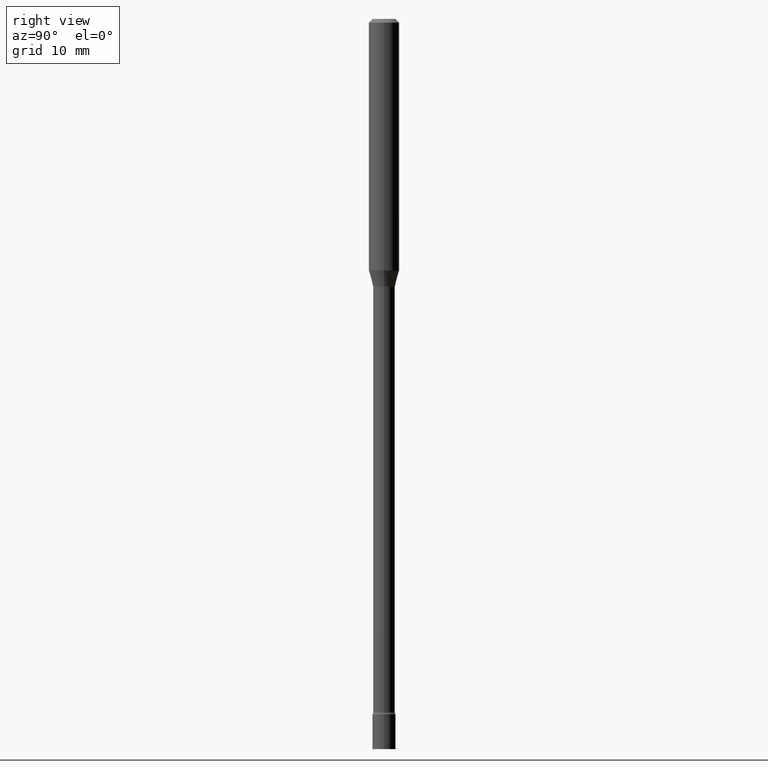
[diagram: clean part render]
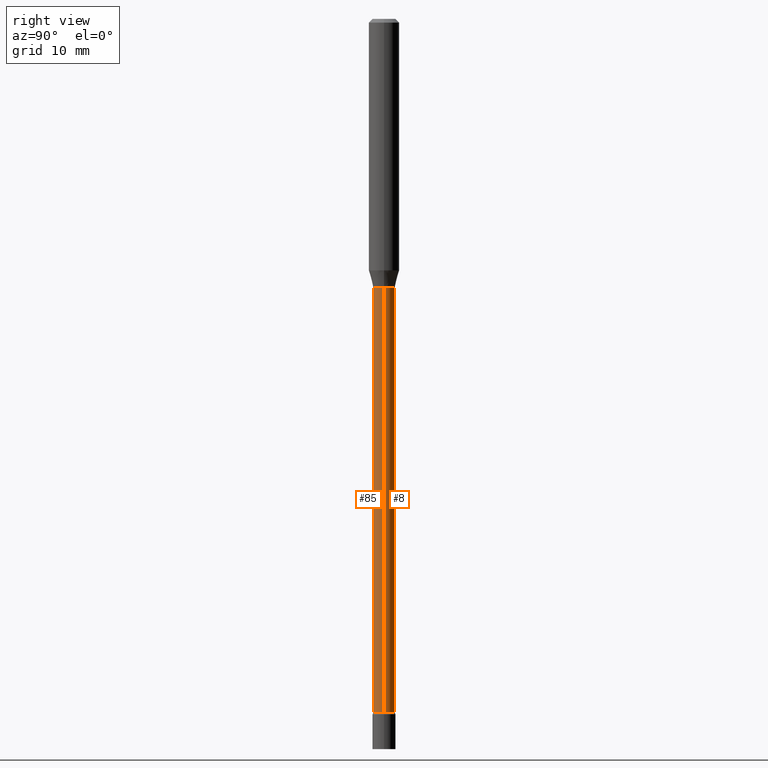
[diagram: same view with one multi-face feature highlighted, each face labeled with its STEP entity id]
A machine part, right view. The highlighted faces form ONE feature: a constant-radius fillet chain: 2 tangent blend faces with common blend radius 1.1341 mm. The faces share edges in the B-rep.
Their STEP definitions:
[1] entity #85 (Cylinder):
#15 = CARTESIAN_POINT ( 'NONE',  ( 2.694844967945245742E-29, -3.847524406305537825E-15, -1.101974787463811056 ) ) ;
#18 = CYLINDRICAL_SURFACE ( 'NONE', #336, 0.04465000000000009933 ) ;
#26 = CARTESIAN_POINT ( 'NONE',  ( 6.965192939722619373E-29, -9.944449550522084107E-15, -2.848203551853162985 ) ) ;
#47 = DIRECTION ( 'NONE',  ( -2.445468806185136877E-29, 3.491481338843145188E-15, 1.000000000000000000 ) ) ;
#48 = VERTEX_POINT ( 'NONE', #462 ) ;
#60 = VECTOR ( 'NONE', #514, 39.37007874015748143 ) ;
#62 = LINE ( 'NONE', #131, #150 ) ;
#69 = CIRCLE ( 'NONE', #288, 0.04465000000000018954 ) ;
#85 = ADVANCED_FACE ( 'NONE', ( #127 ), #18, .T. ) ;
#88 = DIRECTION ( 'NONE',  ( 1.000000000000000000, -6.982962677686268288E-15, 0.000000000000000000 ) ) ;
#117 = EDGE_CURVE ( 'NONE', #216, #48, #440, .T. ) ;
#127 = FACE_OUTER_BOUND ( 'NONE', #283, .T. ) ;
#129 = ORIENTED_EDGE ( 'NONE', *, *, #189, .T. ) ;
#131 = CARTESIAN_POINT ( 'NONE',  ( 0.04465000000000009933, -3.117892835586925182E-16, 2.177212930392890079E-30 ) ) ;
#143 = CARTESIAN_POINT ( 'NONE',  ( -0.04465000000000000219, -6.578729646896923703E-15, -1.101974787463811056 ) ) ;
#150 = VECTOR ( 'NONE', #47, 39.37007874015748143 ) ;
#160 = VERTEX_POINT ( 'NONE', #334 ) ;
#186 = CARTESIAN_POINT ( 'NONE',  ( -0.04465000000000009933, 3.172573315168854388E-16, -2.196304517798820251E-30 ) ) ;
#189 = EDGE_CURVE ( 'NONE', #160, #340, #69, .T. ) ;
#203 = EDGE_CURVE ( 'NONE', #160, #216, #307, .T. ) ;
#216 = VERTEX_POINT ( 'NONE', #143 ) ;
#283 = EDGE_LOOP ( 'NONE', ( #368, #129, #363, #461 ) ) ;
#288 = AXIS2_PLACEMENT_3D ( 'NONE', #26, #428, #429 ) ;
#291 = DIRECTION ( 'NONE',  ( 1.000000000000000000, -6.982962677686266711E-15, 4.876176775795935793E-29 ) ) ;
#301 = DIRECTION ( 'NONE',  ( -2.445468806185136597E-29, 3.491481338843145583E-15, 1.000000000000000000 ) ) ;
#307 = LINE ( 'NONE', #186, #60 ) ;
#334 = CARTESIAN_POINT ( 'NONE',  ( -0.04465000000000018954, -9.632423302297009755E-15, -2.848203551853162985 ) ) ;
#336 = AXIS2_PLACEMENT_3D ( 'NONE', #370, #365, #291 ) ;
#340 = VERTEX_POINT ( 'NONE', #437 ) ;
#363 = ORIENTED_EDGE ( 'NONE', *, *, #436, .T. ) ;
#365 = DIRECTION ( 'NONE',  ( -2.445468806185136597E-29, 3.491481338843145583E-15, 1.000000000000000000 ) ) ;
#368 = ORIENTED_EDGE ( 'NONE', *, *, #203, .F. ) ;
#370 = CARTESIAN_POINT ( 'NONE',  ( 0.000000000000000000, 0.000000000000000000, 0.000000000000000000 ) ) ;
#428 = DIRECTION ( 'NONE',  ( -2.445468806185136597E-29, 3.491481338843145583E-15, 1.000000000000000000 ) ) ;
#429 = DIRECTION ( 'NONE',  ( 1.000000000000000000, -6.982962677686249356E-15, 0.000000000000000000 ) ) ;
#436 = EDGE_CURVE ( 'NONE', #340, #48, #62, .T. ) ;
#437 = CARTESIAN_POINT ( 'NONE',  ( 0.04465000000000018954, -1.025623883408077648E-14, -2.848203551853162985 ) ) ;
#440 = CIRCLE ( 'NONE', #485, 0.04465000000000000219 ) ;
#461 = ORIENTED_EDGE ( 'NONE', *, *, #117, .F. ) ;
#462 = CARTESIAN_POINT ( 'NONE',  ( 0.04465000000000000219, -4.159313689864229407E-15, -1.101974787463811056 ) ) ;
#485 = AXIS2_PLACEMENT_3D ( 'NONE', #15, #301, #88 ) ;
#514 = DIRECTION ( 'NONE',  ( -2.445468806185136877E-29, 3.491481338843145188E-15, 1.000000000000000000 ) ) ;
[2] entity #8 (Cylinder):
#7 = ORIENTED_EDGE ( 'NONE', *, *, #436, .F. ) ;
#8 = ADVANCED_FACE ( 'NONE', ( #46 ), #252, .T. ) ;
#35 = DIRECTION ( 'NONE',  ( 1.000000000000000000, -6.982962677686268288E-15, 0.000000000000000000 ) ) ;
#46 = FACE_OUTER_BOUND ( 'NONE', #97, .T. ) ;
#47 = DIRECTION ( 'NONE',  ( -2.445468806185136877E-29, 3.491481338843145188E-15, 1.000000000000000000 ) ) ;
#48 = VERTEX_POINT ( 'NONE', #462 ) ;
#60 = VECTOR ( 'NONE', #514, 39.37007874015748143 ) ;
#62 = LINE ( 'NONE', #131, #150 ) ;
#66 = DIRECTION ( 'NONE',  ( 1.000000000000000000, -6.982962677686249356E-15, 0.000000000000000000 ) ) ;
#95 = CARTESIAN_POINT ( 'NONE',  ( 6.965192939722619373E-29, -9.944449550522084107E-15, -2.848203551853162985 ) ) ;
#97 = EDGE_LOOP ( 'NONE', ( #333, #253, #483, #7 ) ) ;
#131 = CARTESIAN_POINT ( 'NONE',  ( 0.04465000000000009933, -3.117892835586925182E-16, 2.177212930392890079E-30 ) ) ;
#143 = CARTESIAN_POINT ( 'NONE',  ( -0.04465000000000000219, -6.578729646896923703E-15, -1.101974787463811056 ) ) ;
#146 = DIRECTION ( 'NONE',  ( -2.445468806185136597E-29, 3.491481338843145583E-15, 1.000000000000000000 ) ) ;
#150 = VECTOR ( 'NONE', #47, 39.37007874015748143 ) ;
#160 = VERTEX_POINT ( 'NONE', #334 ) ;
#168 = AXIS2_PLACEMENT_3D ( 'NONE', #95, #269, #66 ) ;
#186 = CARTESIAN_POINT ( 'NONE',  ( -0.04465000000000009933, 3.172573315168854388E-16, -2.196304517798820251E-30 ) ) ;
#203 = EDGE_CURVE ( 'NONE', #160, #216, #307, .T. ) ;
#204 = DIRECTION ( 'NONE',  ( 1.000000000000000000, -6.982962677686266711E-15, 4.876176775795935793E-29 ) ) ;
#216 = VERTEX_POINT ( 'NONE', #143 ) ;
#245 = CIRCLE ( 'NONE', #168, 0.04465000000000018954 ) ;
#252 = CYLINDRICAL_SURFACE ( 'NONE', #297, 0.04465000000000009933 ) ;
#253 = ORIENTED_EDGE ( 'NONE', *, *, #203, .T. ) ;
#263 = DIRECTION ( 'NONE',  ( -2.445468806185136597E-29, 3.491481338843145583E-15, 1.000000000000000000 ) ) ;
#269 = DIRECTION ( 'NONE',  ( -2.445468806185136597E-29, 3.491481338843145583E-15, 1.000000000000000000 ) ) ;
#297 = AXIS2_PLACEMENT_3D ( 'NONE', #458, #263, #204 ) ;
#300 = EDGE_CURVE ( 'NONE', #340, #160, #245, .T. ) ;
#307 = LINE ( 'NONE', #186, #60 ) ;
#328 = CARTESIAN_POINT ( 'NONE',  ( 2.694844967945245742E-29, -3.847524406305537825E-15, -1.101974787463811056 ) ) ;
#333 = ORIENTED_EDGE ( 'NONE', *, *, #300, .T. ) ;
#334 = CARTESIAN_POINT ( 'NONE',  ( -0.04465000000000018954, -9.632423302297009755E-15, -2.848203551853162985 ) ) ;
#340 = VERTEX_POINT ( 'NONE', #437 ) ;
#346 = EDGE_CURVE ( 'NONE', #48, #216, #378, .T. ) ;
#378 = CIRCLE ( 'NONE', #511, 0.04465000000000000219 ) ;
#436 = EDGE_CURVE ( 'NONE', #340, #48, #62, .T. ) ;
#437 = CARTESIAN_POINT ( 'NONE',  ( 0.04465000000000018954, -1.025623883408077648E-14, -2.848203551853162985 ) ) ;
#458 = CARTESIAN_POINT ( 'NONE',  ( 0.000000000000000000, 0.000000000000000000, 0.000000000000000000 ) ) ;
#462 = CARTESIAN_POINT ( 'NONE',  ( 0.04465000000000000219, -4.159313689864229407E-15, -1.101974787463811056 ) ) ;
#483 = ORIENTED_EDGE ( 'NONE', *, *, #346, .F. ) ;
#511 = AXIS2_PLACEMENT_3D ( 'NONE', #328, #146, #35 ) ;
#514 = DIRECTION ( 'NONE',  ( -2.445468806185136877E-29, 3.491481338843145188E-15, 1.000000000000000000 ) ) ;